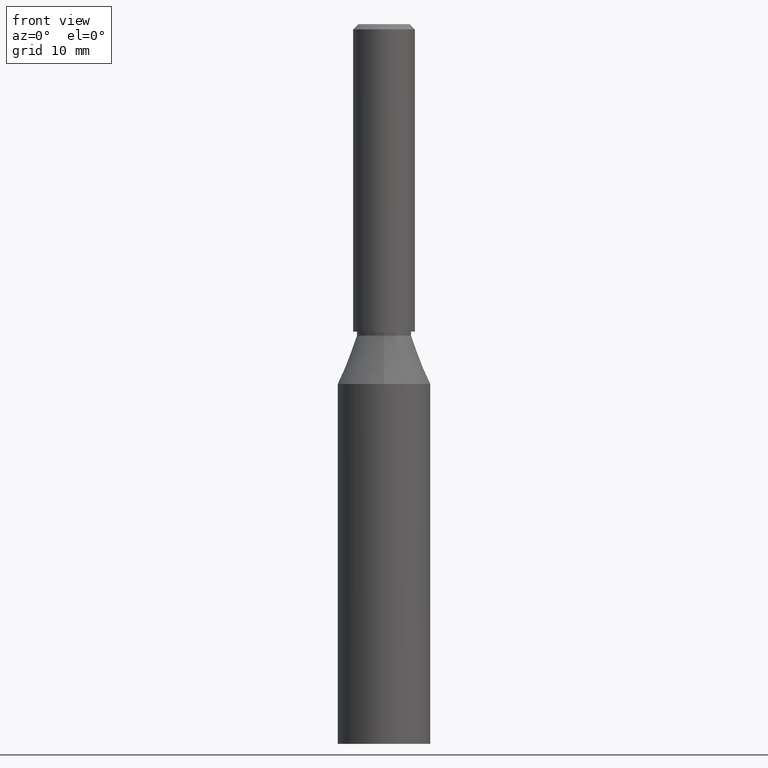
[diagram: clean part render]
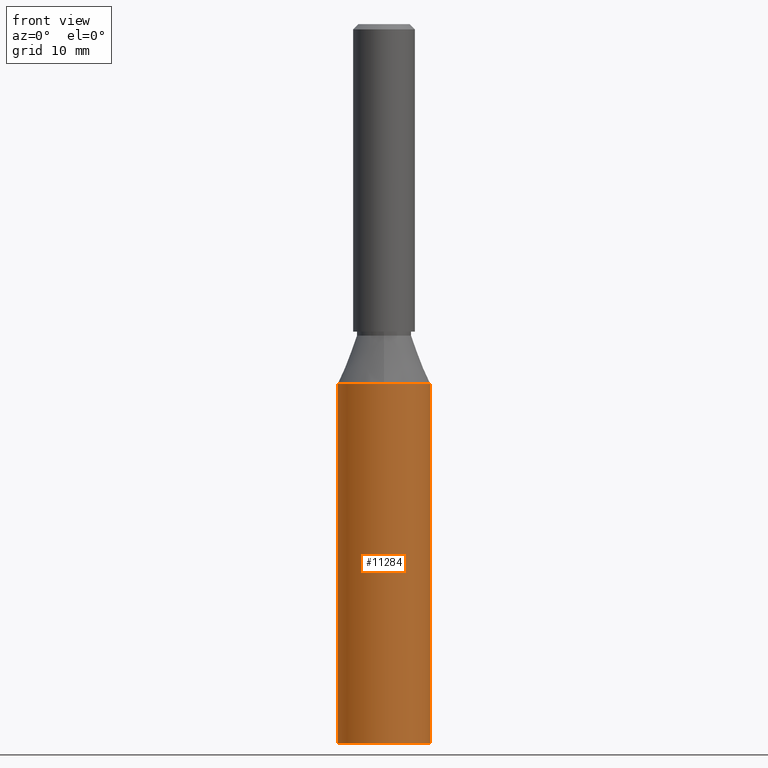
[diagram: same view with one face highlighted and labeled with its STEP entity id]
A machine part, front view. The second image highlights one B-rep face of the part: STEP entity #11284.
In plain terms, the highlighted cylindrical surface (partial cylindrical patch) has radius 4.5 mm, axis along (-0, -0, -1).
Its self-contained STEP definition (entity closure, byte-faithful):
#32 = CARTESIAN_POINT ( 'NONE',  ( 0.0000000000000000000, -6.887097141624716800E-017, 35.00000000000000000 ) ) ;
#184 = CARTESIAN_POINT ( 'NONE',  ( 0.0000000000000000000, 0.0000000000000000000, 0.0000000000000000000 ) ) ;
#233 = CYLINDRICAL_SURFACE ( 'NONE', #7757, 4.500000000000000000 ) ;
#260 = CARTESIAN_POINT ( 'NONE',  ( 4.500000000000003600, 5.510910596163094500E-016, 35.00000000000000000 ) ) ;
#748 = EDGE_CURVE ( 'NONE', #820, #13061, #9024, .T. ) ;
#820 = VERTEX_POINT ( 'NONE', #7149 ) ;
#1042 = CARTESIAN_POINT ( 'NONE',  ( -4.500000000000000000, 0.0000000000000000000, 40.00000000000000000 ) ) ;
#1060 = DIRECTION ( 'NONE',  ( 0.0000000000000000000, 0.0000000000000000000, 1.000000000000000000 ) ) ;
#1355 = CARTESIAN_POINT ( 'NONE',  ( 4.500000000000000000, 5.510910596163088600E-016, 40.00000000000000000 ) ) ;
#1695 = VERTEX_POINT ( 'NONE', #260 ) ;
#2212 = DIRECTION ( 'NONE',  ( -0.0000000000000000000, -0.0000000000000000000, -1.000000000000000000 ) ) ;
#2370 = EDGE_LOOP ( 'NONE', ( #10547, #2515, #3461, #11746, #3410 ) ) ;
#2515 = ORIENTED_EDGE ( 'NONE', *, *, #12381, .T. ) ;
#2802 = CARTESIAN_POINT ( 'NONE',  ( 0.0000000000000000000, 0.0000000000000000000, 40.00000000000000000 ) ) ;
#3392 = EDGE_CURVE ( 'NONE', #11184, #7531, #4581, .T. ) ;
#3410 = ORIENTED_EDGE ( 'NONE', *, *, #3392, .T. ) ;
#3461 = ORIENTED_EDGE ( 'NONE', *, *, #748, .T. ) ;
#3680 = CARTESIAN_POINT ( 'NONE',  ( 4.500000000000000000, 5.510910596163088600E-016, 0.0000000000000000000 ) ) ;
#3970 = EDGE_CURVE ( 'NONE', #1695, #7531, #8203, .T. ) ;
#4025 = DIRECTION ( 'NONE',  ( -0.0000000000000000000, -0.0000000000000000000, -1.000000000000000000 ) ) ;
#4581 = CIRCLE ( 'NONE', #8474, 4.500000000000000000 ) ;
#4688 = DIRECTION ( 'NONE',  ( -1.000000000000000000, 0.0000000000000000000, 0.0000000000000000000 ) ) ;
#5316 = CARTESIAN_POINT ( 'NONE',  ( -4.500000000000000000, 0.0000000000000000000, 0.0000000000000000000 ) ) ;
#5510 = VECTOR ( 'NONE', #2212, 1000.000000000000000 ) ;
#5772 = FACE_OUTER_BOUND ( 'NONE', #2370, .T. ) ;
#6356 = VECTOR ( 'NONE', #4025, 1000.000000000000000 ) ;
#7149 = CARTESIAN_POINT ( 'NONE',  ( 5.510910596163094500E-016, -4.500000000000003600, 35.00000000000000000 ) ) ;
#7531 = VERTEX_POINT ( 'NONE', #3680 ) ;
#7757 = AXIS2_PLACEMENT_3D ( 'NONE', #2802, #10916, #4688 ) ;
#7947 = CARTESIAN_POINT ( 'NONE',  ( 0.0000000000000000000, -6.887097141624716800E-017, 35.00000000000000000 ) ) ;
#8108 = DIRECTION ( 'NONE',  ( 0.0000000000000000000, 1.000000000000000000, 0.0000000000000000000 ) ) ;
#8203 = LINE ( 'NONE', #1355, #5510 ) ;
#8252 = EDGE_CURVE ( 'NONE', #13061, #11184, #9033, .T. ) ;
#8474 = AXIS2_PLACEMENT_3D ( 'NONE', #184, #1060, #10238 ) ;
#8884 = AXIS2_PLACEMENT_3D ( 'NONE', #32, #12224, #8108 ) ;
#9019 = AXIS2_PLACEMENT_3D ( 'NONE', #7947, #10977, #9914 ) ;
#9024 = CIRCLE ( 'NONE', #8884, 4.500000000000003600 ) ;
#9033 = LINE ( 'NONE', #1042, #6356 ) ;
#9049 = CIRCLE ( 'NONE', #9019, 4.500000000000003600 ) ;
#9665 = CARTESIAN_POINT ( 'NONE',  ( -4.500000000000003600, 6.018531076210112000E-032, 35.00000000000000000 ) ) ;
#9914 = DIRECTION ( 'NONE',  ( 0.0000000000000000000, 1.000000000000000000, 0.0000000000000000000 ) ) ;
#10238 = DIRECTION ( 'NONE',  ( 1.000000000000000000, 0.0000000000000000000, 0.0000000000000000000 ) ) ;
#10547 = ORIENTED_EDGE ( 'NONE', *, *, #3970, .F. ) ;
#10916 = DIRECTION ( 'NONE',  ( -0.0000000000000000000, -0.0000000000000000000, -1.000000000000000000 ) ) ;
#10977 = DIRECTION ( 'NONE',  ( -0.0000000000000000000, 1.967742040464204400E-018, -1.000000000000000000 ) ) ;
#11184 = VERTEX_POINT ( 'NONE', #5316 ) ;
#11284 = ADVANCED_FACE ( 'NONE', ( #5772 ), #233, .T. ) ;
#11746 = ORIENTED_EDGE ( 'NONE', *, *, #8252, .T. ) ;
#12224 = DIRECTION ( 'NONE',  ( -0.0000000000000000000, 1.967742040464204400E-018, -1.000000000000000000 ) ) ;
#12381 = EDGE_CURVE ( 'NONE', #1695, #820, #9049, .T. ) ;
#13061 = VERTEX_POINT ( 'NONE', #9665 ) ;